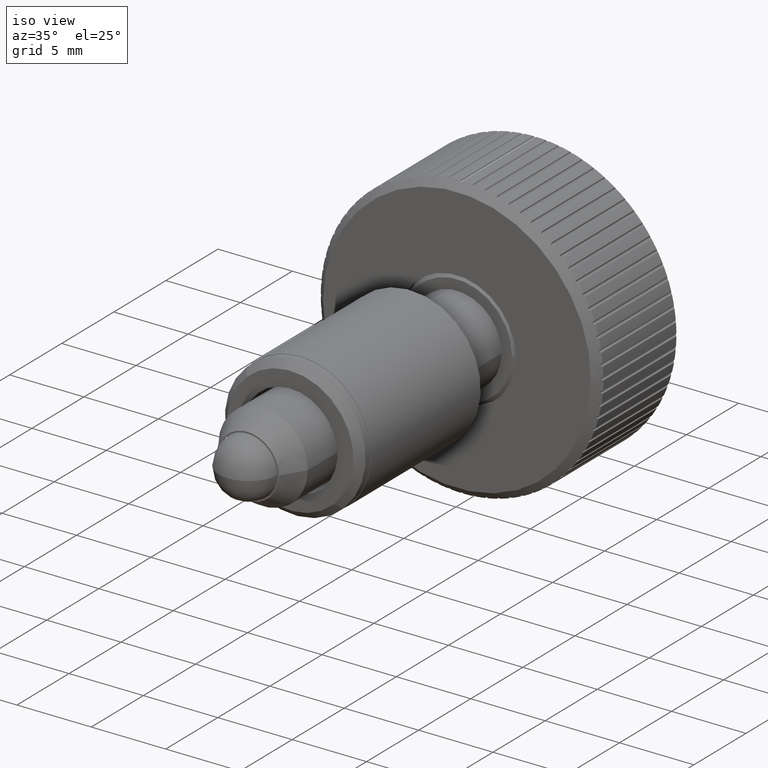
[diagram: clean part render]
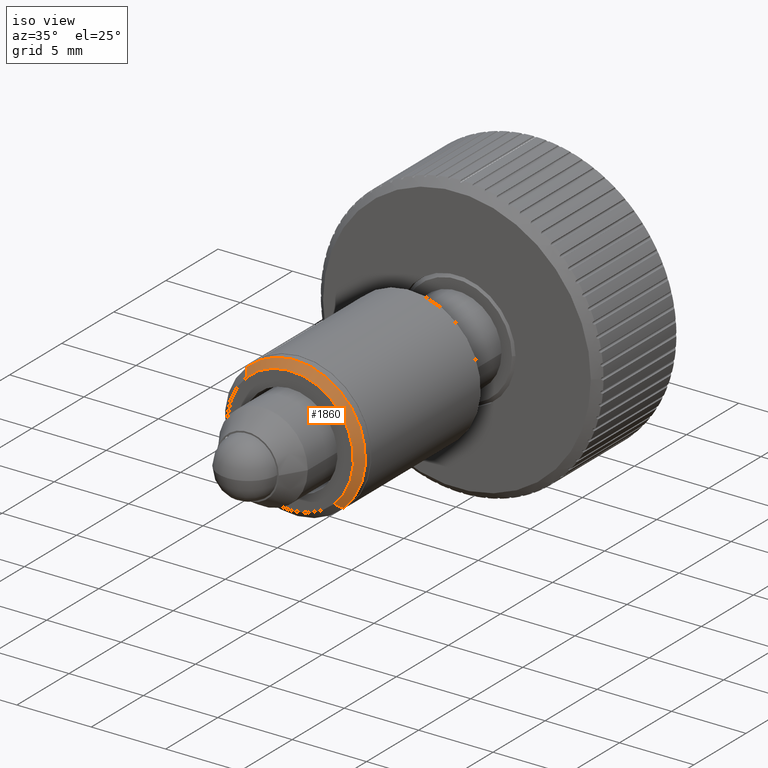
[diagram: same view with one face highlighted and labeled with its STEP entity id]
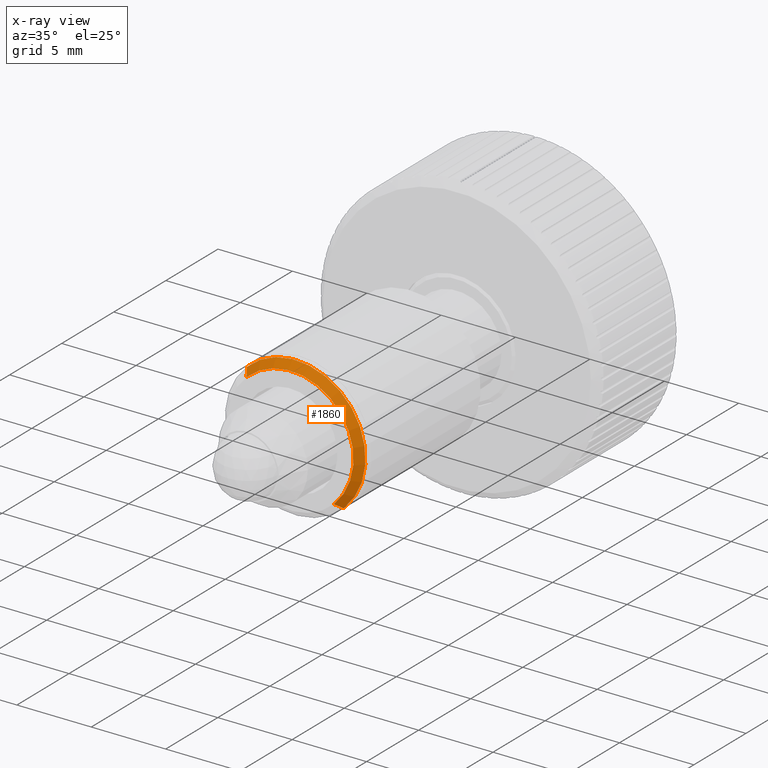
[diagram: x-ray of the same camera — body ghosted, the highlighted face saturated]
A machine part, iso view. The second image highlights one B-rep face of the part: STEP entity #1860.
The next image is the same camera in x-ray: the body ghosted, the highlighted face saturated — about 0% of this face is hidden behind the body in this view.
In plain terms, the highlighted conical surface has half-angle 45 deg.
Its self-contained STEP definition (entity closure, byte-faithful):
#970 = VECTOR ( 'NONE', #4138, 1000.000000000000000 ) ;
#1353 = DIRECTION ( 'NONE',  ( 3.491481338843132200E-015, -1.000000000000000000, -1.230100298268891300E-029 ) ) ;
#1592 = VECTOR ( 'NONE', #9570, 1000.000000000000000 ) ;
#1611 = EDGE_CURVE ( 'NONE', #9676, #5939, #3854, .T. ) ;
#1860 = ADVANCED_FACE ( 'NONE', ( #9418 ), #3684, .T. ) ;
#1873 = LINE ( 'NONE', #8703, #1592 ) ;
#1906 = CARTESIAN_POINT ( 'NONE',  ( -1.431507348925672400E-014, 4.100000000000013000, -2.135904401604882200E-029 ) ) ;
#2278 = CARTESIAN_POINT ( 'NONE',  ( -1.431507348925672400E-014, 4.100000000000013000, -2.135904401604882200E-029 ) ) ;
#2588 = EDGE_CURVE ( 'NONE', #9676, #7576, #9595, .T. ) ;
#2989 = ORIENTED_EDGE ( 'NONE', *, *, #10216, .F. ) ;
#3151 = DIRECTION ( 'NONE',  ( -0.6891762399271189600, -2.449021377849608800E-015, 0.7245937553691160800 ) ) ;
#3684 = CONICAL_SURFACE ( 'NONE', #4947, 4.250000000000001800, 0.7853981633974447300 ) ;
#3854 = LINE ( 'NONE', #8485, #970 ) ;
#4138 = DIRECTION ( 'NONE',  ( 0.4873211926851087600, 0.7071067811865516800, -0.5123651580269265000 ) ) ;
#4210 = EDGE_CURVE ( 'NONE', #5939, #9434, #5910, .T. ) ;
#4510 = DIRECTION ( 'NONE',  ( -3.491481338843132200E-015, 1.000000000000000000, 1.230100298268891300E-029 ) ) ;
#4739 = AXIS2_PLACEMENT_3D ( 'NONE', #2278, #8373, #3151 ) ;
#4947 = AXIS2_PLACEMENT_3D ( 'NONE', #1906, #4510, #8031 ) ;
#5635 = CARTESIAN_POINT ( 'NONE',  ( -3.256357733655652600, 4.575000000000003700, 3.423705494119071900 ) ) ;
#5910 = CIRCLE ( 'NONE', #9784, 4.724999999999999600 ) ;
#5939 = VERTEX_POINT ( 'NONE', #10283 ) ;
#6604 = CARTESIAN_POINT ( 'NONE',  ( -1.597352712520722000E-014, 4.575000000000014400, -1.551606759927155700E-029 ) ) ;
#7317 = ORIENTED_EDGE ( 'NONE', *, *, #2588, .F. ) ;
#7480 = DIRECTION ( 'NONE',  ( 0.6891762399271189600, 2.386392083354338100E-015, -0.7245937553691159700 ) ) ;
#7576 = VERTEX_POINT ( 'NONE', #10950 ) ;
#7938 = ORIENTED_EDGE ( 'NONE', *, *, #4210, .T. ) ;
#8031 = DIRECTION ( 'NONE',  ( 0.6891762399271189600, 2.449021377849608800E-015, -0.7245937553691160800 ) ) ;
#8373 = DIRECTION ( 'NONE',  ( 3.491481338843132200E-015, -1.000000000000000000, -1.230100298268891300E-029 ) ) ;
#8485 = CARTESIAN_POINT ( 'NONE',  ( 2.928999019690242500, 4.100000000000023600, -3.079523460318744500 ) ) ;
#8703 = CARTESIAN_POINT ( 'NONE',  ( -2.928999019690271300, 4.100000000000003200, 3.079523460318744000 ) ) ;
#9418 = FACE_OUTER_BOUND ( 'NONE', #10295, .T. ) ;
#9434 = VERTEX_POINT ( 'NONE', #5635 ) ;
#9570 = DIRECTION ( 'NONE',  ( -0.4873211926851137000, 0.7071067811865483500, 0.5123651580269263900 ) ) ;
#9594 = ORIENTED_EDGE ( 'NONE', *, *, #1611, .T. ) ;
#9595 = CIRCLE ( 'NONE', #4739, 4.250000000000001800 ) ;
#9676 = VERTEX_POINT ( 'NONE', #11113 ) ;
#9784 = AXIS2_PLACEMENT_3D ( 'NONE', #6604, #1353, #7480 ) ;
#10216 = EDGE_CURVE ( 'NONE', #7576, #9434, #1873, .T. ) ;
#10283 = CARTESIAN_POINT ( 'NONE',  ( 3.256357733655619800, 4.575000000000025900, -3.423705494119074100 ) ) ;
#10295 = EDGE_LOOP ( 'NONE', ( #2989, #7317, #9594, #7938 ) ) ;
#10950 = CARTESIAN_POINT ( 'NONE',  ( -2.928999019690271300, 4.100000000000003200, 3.079523460318744000 ) ) ;
#11113 = CARTESIAN_POINT ( 'NONE',  ( 2.928999019690242500, 4.100000000000023600, -3.079523460318744500 ) ) ;